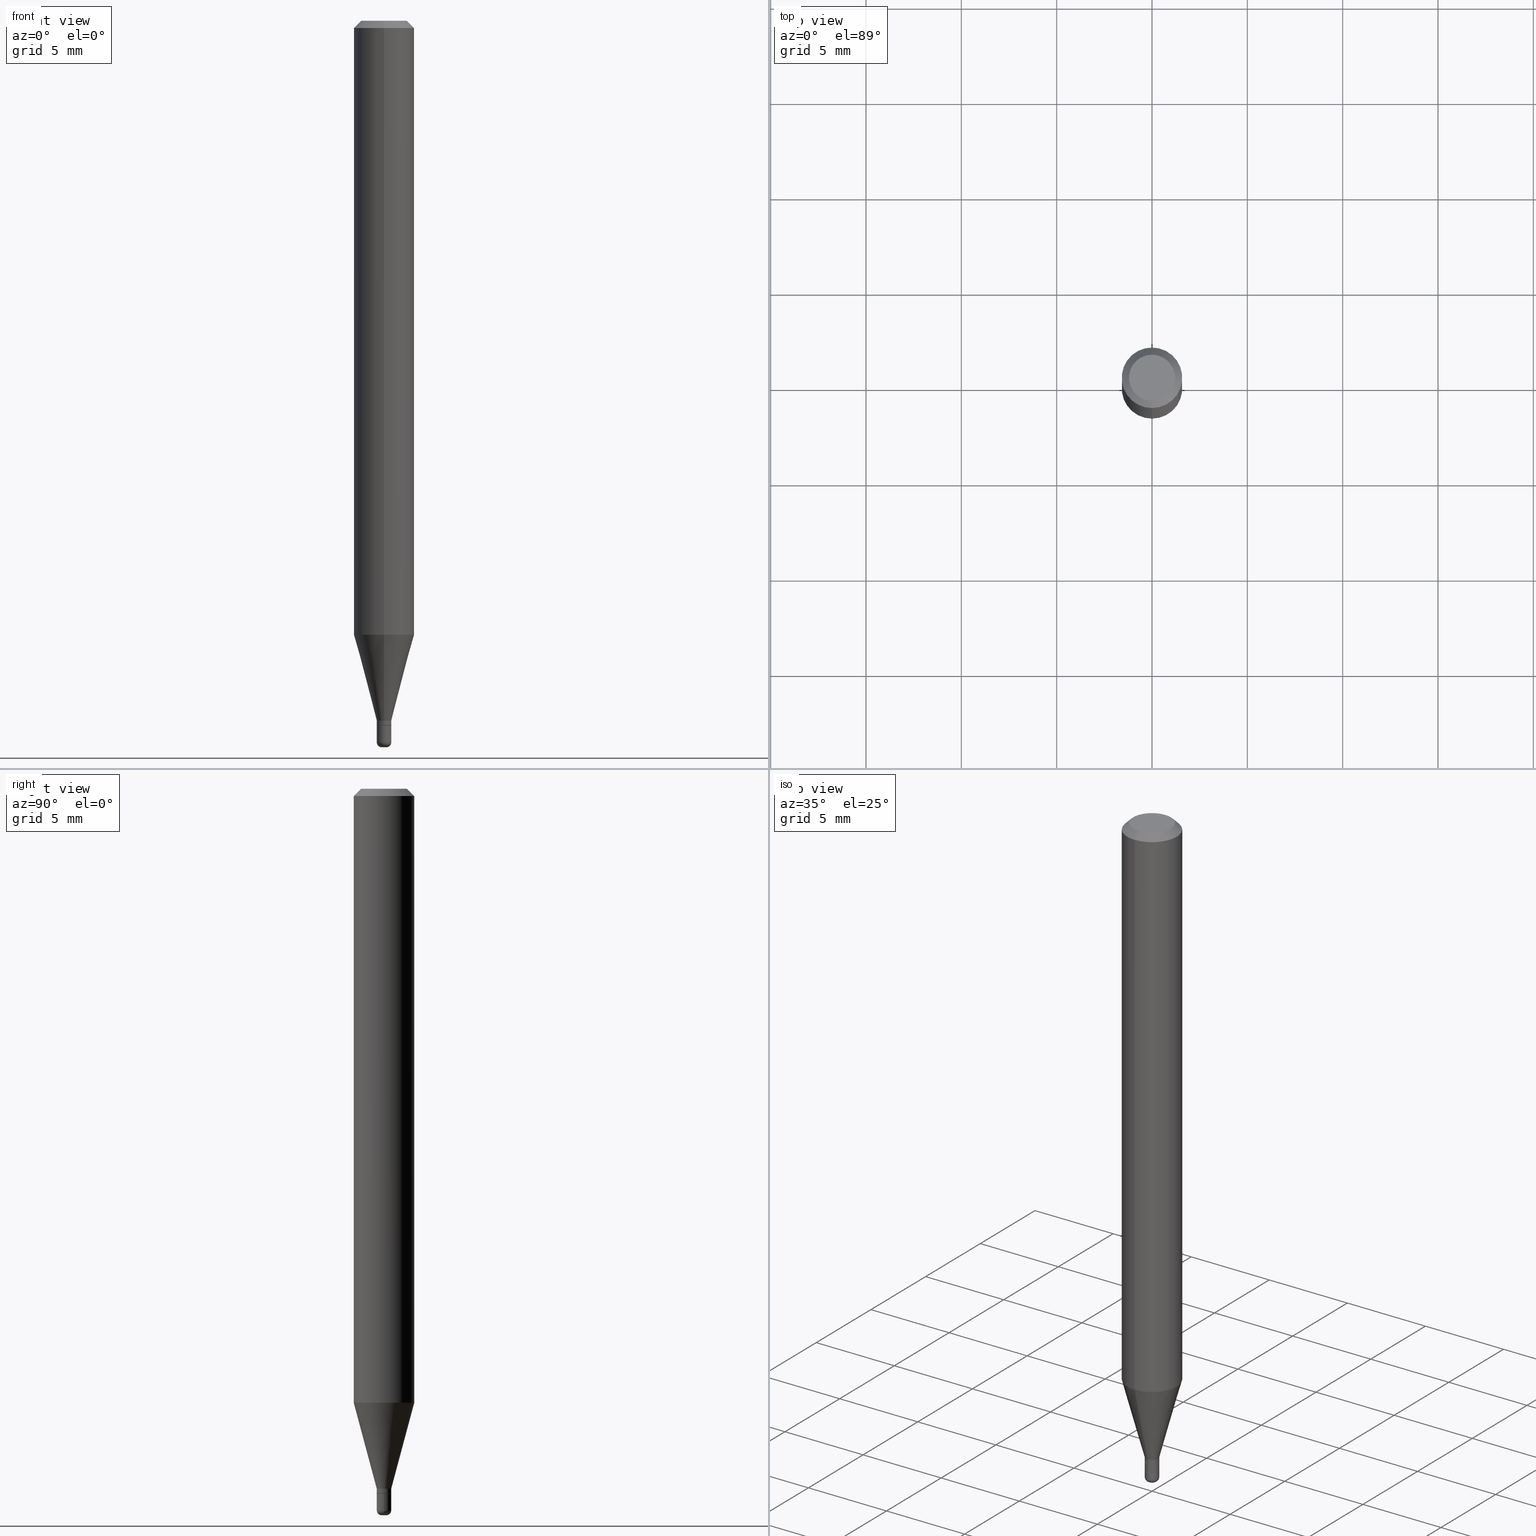
[diagram: canonical four-view strip — front | top / right | iso, engineering-drawing reading convention]
A machine part, canonical four-view strip (front | top / right | iso — engineering-drawing reading convention). The complete STEP part file that produces these views, byte-faithful:
ISO-10303-21;
HEADER;
FILE_DESCRIPTION (( 'STEP AP203' ),
    '1' );
FILE_NAME ('08992.STEP',
    '2024-02-29T21:06:07',
    ( '' ),
    ( '' ),
    'SwSTEP 2.0',
    'SolidWorks 2023',
    '' );
FILE_SCHEMA (( 'CONFIG_CONTROL_DESIGN' ));
ENDSEC;

DATA;
#1 = ORIENTED_EDGE ( 'NONE', *, *, #113, .T. ) ;
#2 = EDGE_LOOP ( 'NONE', ( #11, #154 ) ) ;
#3 = DATE_AND_TIME ( #166, #94 ) ;
#4 = VERTEX_POINT ( 'NONE', #46 ) ;
#5 = AXIS2_PLACEMENT_3D ( 'NONE', #391, #230, #393 ) ;
#6 = APPROVAL_PERSON_ORGANIZATION ( #403, #387, #202 ) ;
#7 = DIRECTION ( 'NONE',  ( -2.445486429573082884E-29, 3.491456101148545241E-15, 1.000000000000000000 ) ) ;
#8 = EDGE_CURVE ( 'NONE', #345, #23, #160, .T. ) ;
#9 = VERTEX_POINT ( 'NONE', #330 ) ;
#10 = PERSON_AND_ORGANIZATION ( #296, #280 ) ;
#11 = ORIENTED_EDGE ( 'NONE', *, *, #338, .F. ) ;
#12 = CARTESIAN_POINT ( 'NONE',  ( 3.582686580359767159E-29, -5.359686688179454114E-15, -1.500000000000000444 ) ) ;
#13 = CONICAL_SURFACE ( 'NONE', #445, 0.01500000000000004455, 0.2617993877991494078 ) ;
#14 = VECTOR ( 'NONE', #74, 39.37007874015748143 ) ;
#15 = ORIENTED_EDGE ( 'NONE', *, *, #8, .F. ) ;
#16 = ADVANCED_FACE ( 'NONE', ( #484 ), #20, .T. ) ;
#17 = DIRECTION ( 'NONE',  ( -2.445486429573083164E-29, 3.491456101148545241E-15, 1.000000000000000000 ) ) ;
#18 = CYLINDRICAL_SURFACE ( 'NONE', #287, 0.01500000000000004281 ) ;
#19 = DIRECTION ( 'NONE',  ( 6.982962677686265922E-15, 1.000000000000000000, -3.491456101148545241E-15 ) ) ;
#20 = CYLINDRICAL_SURFACE ( 'NONE', #120, 0.06250000000000000000 ) ;
#21 = VECTOR ( 'NONE', #68, 39.37007874015748143 ) ;
#22 = PLANE ( 'NONE',  #110 ) ;
#23 = VERTEX_POINT ( 'NONE', #129 ) ;
#24 = CARTESIAN_POINT ( 'NONE',  ( 3.533727890733106107E-29, -5.045154066159648808E-15, -1.445000000000000284 ) ) ;
#25 = LINE ( 'NONE', #108, #168 ) ;
#26 = ORIENTED_EDGE ( 'NONE', *, *, #162, .F. ) ;
#27 = DIRECTION ( 'NONE',  ( -6.982962677686265922E-15, -1.000000000000000000, 3.483106191921935554E-15 ) ) ;
#28 = VECTOR ( 'NONE', #380, 39.37007874015748854 ) ;
#29 = CC_DESIGN_APPROVAL ( #124, ( #245 ) ) ;
#30 = EDGE_CURVE ( 'NONE', #112, #424, #242, .T. ) ;
#31 = CARTESIAN_POINT ( 'NONE',  ( -1.047444401652589802E-16, -0.01500000000000509086, -1.445000000000000284 ) ) ;
#32 = CARTESIAN_POINT ( 'NONE',  ( 3.556960011814050937E-29, -5.078322899120560827E-15, -1.454500000000000570 ) ) ;
#33 = CARTESIAN_POINT ( 'NONE',  ( 0.000000000000000000, 0.000000000000000000, 0.000000000000000000 ) ) ;
#34 = DIRECTION ( 'NONE',  ( -6.982962677686265922E-15, -1.000000000000000000, 3.491456101148544846E-15 ) ) ;
#35 = CARTESIAN_POINT ( 'NONE',  ( 3.668203209277706016E-29, -5.237222008264719754E-15, -1.500000000000000444 ) ) ;
#36 = DIRECTION ( 'NONE',  ( -2.445486429573083164E-29, 3.491456101148545241E-15, 1.000000000000000000 ) ) ;
#37 = EDGE_CURVE ( 'NONE', #424, #112, #488, .T. ) ;
#38 = CIRCLE ( 'NONE', #361, 0.01500000000000004455 ) ;
#39 = CARTESIAN_POINT ( 'NONE',  ( 0.005000000000000000104, -5.237222008264719754E-15, -1.490000000000000213 ) ) ;
#40 = AXIS2_PLACEMENT_3D ( 'NONE', #125, #55, #511 ) ;
#41 = ORIENTED_EDGE ( 'NONE', *, *, #515, .T. ) ;
#42 = DATE_AND_TIME ( #440, #203 ) ;
#43 = VERTEX_POINT ( 'NONE', #89 ) ;
#44 = COORDINATED_UNIVERSAL_TIME_OFFSET ( 5, 0, .BEHIND. ) ;
#45 = ORIENTED_EDGE ( 'NONE', *, *, #162, .T. ) ;
#46 = CARTESIAN_POINT ( 'NONE',  ( -0.01499999999999999944, -5.034624861082517202E-15, -1.455000000000000293 ) ) ;
#47 = APPROVAL_STATUS ( 'not_yet_approved' ) ;
#48 = ORIENTED_EDGE ( 'NONE', *, *, #265, .T. ) ;
#49 = SHAPE_DEFINITION_REPRESENTATION ( #221, #117 ) ;
#50 = COORDINATED_UNIVERSAL_TIME_OFFSET ( 5, 0, .BEHIND. ) ;
#51 = ORIENTED_EDGE ( 'NONE', *, *, #338, .T. ) ;
#52 = APPROVAL_DATE_TIME ( #42, #387 ) ;
#53 = AXIS2_PLACEMENT_3D ( 'NONE', #307, #459, #171 ) ;
#54 = EDGE_LOOP ( 'NONE', ( #271, #45, #169, #274 ) ) ;
#55 = DIRECTION ( 'NONE',  ( -2.445486429573082884E-29, 3.491456101148545241E-15, 1.000000000000000000 ) ) ;
#56 = CC_DESIGN_PERSON_AND_ORGANIZATION_ASSIGNMENT ( #248, #416, ( #245 ) ) ;
#57 = ADVANCED_FACE ( 'NONE', ( #423 ), #267, .T. ) ;
#58 = CARTESIAN_POINT ( 'NONE',  ( 3.643748521215853910E-29, -5.202307194876288105E-15, -1.490000000000000213 ) ) ;
#59 = FACE_OUTER_BOUND ( 'NONE', #474, .T. ) ;
#60 = VECTOR ( 'NONE', #188, 39.37007874015748143 ) ;
#61 = ORIENTED_EDGE ( 'NONE', *, *, #113, .F. ) ;
#62 = LINE ( 'NONE', #224, #191 ) ;
#63 = ORIENTED_EDGE ( 'NONE', *, *, #8, .T. ) ;
#64 = FACE_OUTER_BOUND ( 'NONE', #2, .T. ) ;
#65 = ADVANCED_FACE ( 'NONE', ( #456 ), #373, .T. ) ;
#66 = CARTESIAN_POINT ( 'NONE',  ( 3.643748521215853910E-29, -5.202307194876288105E-15, -1.490000000000000213 ) ) ;
#67 = ORIENTED_EDGE ( 'NONE', *, *, #119, .T. ) ;
#68 = DIRECTION ( 'NONE',  ( -2.445468806185136877E-29, 3.491481338843145188E-15, 1.000000000000000000 ) ) ;
#69 = CONICAL_SURFACE ( 'NONE', #121, 0.01450000000000004410, 0.7853981633978217580 ) ;
#70 = CARTESIAN_POINT ( 'NONE',  ( 3.558182755028836386E-29, -5.080068627171133732E-15, -1.455000000000000293 ) ) ;
#71 = CARTESIAN_POINT ( 'NONE',  ( 0.000000000000000000, 0.000000000000000000, 0.000000000000000000 ) ) ;
#72 = CARTESIAN_POINT ( 'NONE',  ( 1.065814103640506706E-16, 0.01499999999999499997, -1.445000000000000284 ) ) ;
#73 = DIRECTION ( 'NONE',  ( -1.000000000000000000, 6.982962677686265922E-15, -4.876176775795935793E-29 ) ) ;
#74 = DIRECTION ( 'NONE',  ( -2.445486429573082884E-29, 3.491456101148545241E-15, 1.000000000000000000 ) ) ;
#75 = CARTESIAN_POINT ( 'NONE',  ( -1.012529588264155786E-16, -0.01450000000000512337, -1.455000000000000293 ) ) ;
#76 = APPROVAL_PERSON_ORGANIZATION ( #246, #504, #84 ) ;
#77 = AXIS2_PLACEMENT_3D ( 'NONE', #400, #161, #331 ) ;
#78 = EDGE_LOOP ( 'NONE', ( #425, #326, #297, #212 ) ) ;
#79 = ADVANCED_FACE ( 'NONE', ( #59 ), #216, .T. ) ;
#80 = EDGE_LOOP ( 'NONE', ( #223, #67, #334, #197 ) ) ;
#81 = MANIFOLD_SOLID_BREP ( 'Body-Move/Copy2[1]', #383 ) ;
#82 = ORIENTED_EDGE ( 'NONE', *, *, #298, .T. ) ;
#83 = ADVANCED_FACE ( 'NONE', ( #88 ), #135, .T. ) ;
#84 = APPROVAL_ROLE ( '' ) ;
#85 = AXIS2_PLACEMENT_3D ( 'NONE', #322, #435, #27 ) ;
#86 = CC_DESIGN_APPROVAL ( #504, ( #251 ) ) ;
#87 = PERSON_AND_ORGANIZATION_ROLE ( 'creator' ) ;
#88 = FACE_OUTER_BOUND ( 'NONE', #477, .T. ) ;
#89 = CARTESIAN_POINT ( 'NONE',  ( -0.005000000000000001839, -5.148710327994493848E-15, -1.500000000000000444 ) ) ;
#90 = ADVANCED_FACE ( 'NONE', ( #453 ), #22, .F. ) ;
#91 = DIRECTION ( 'NONE',  ( -6.982962677686265922E-15, -1.000000000000000000, 3.491456101148544846E-15 ) ) ;
#92 = CARTESIAN_POINT ( 'NONE',  ( 3.533727890733106107E-29, -5.045154066159648808E-15, -1.445000000000000284 ) ) ;
#93 = AXIS2_PLACEMENT_3D ( 'NONE', #193, #148, #138 ) ;
#94 = LOCAL_TIME ( 16, 6, 7.000000000000000000, #447 ) ;
#95 = EDGE_CURVE ( 'NONE', #410, #118, #38, .T. ) ;
#96 = VERTEX_POINT ( 'NONE', #499 ) ;
#97 = DIRECTION ( 'NONE',  ( -6.982962677686266711E-15, -1.000000000000000000, 0.000000000000000000 ) ) ;
#98 = DIRECTION ( 'NONE',  ( -2.445468806185136597E-29, 3.491481338843145583E-15, 1.000000000000000000 ) ) ;
#99 = ORIENTED_EDGE ( 'NONE', *, *, #360, .F. ) ;
#100 = DIRECTION ( 'NONE',  ( -2.445486429573083164E-29, 3.491456101148545241E-15, 1.000000000000000000 ) ) ;
#101 = DIRECTION ( 'NONE',  ( -2.445468806185136597E-29, 3.491481338843145583E-15, 1.000000000000000000 ) ) ;
#102 = CARTESIAN_POINT ( 'NONE',  ( 1.047444401653295709E-16, 0.01499999999999492017, -1.455000000000000293 ) ) ;
#103 = CIRCLE ( 'NONE', #404, 0.01500000000000004281 ) ;
#104 = DIRECTION ( 'NONE',  ( 5.024295867789938301E-15, 0.7071067811868140263, 0.7071067811862810082 ) ) ;
#105 = DIRECTION ( 'NONE',  ( 1.000000000000000000, -6.982962677686292743E-15, 4.883557194083121309E-29 ) ) ;
#106 = LINE ( 'NONE', #434, #14 ) ;
#107 = DIRECTION ( 'NONE',  ( -6.982962677686265922E-15, -1.000000000000000000, 0.000000000000000000 ) ) ;
#108 = CARTESIAN_POINT ( 'NONE',  ( 1.030286966852504007E-16, 0.01449999999999496310, -1.455000000000000293 ) ) ;
#109 = VERTEX_POINT ( 'NONE', #498 ) ;
#110 = AXIS2_PLACEMENT_3D ( 'NONE', #371, #305, #19 ) ;
#111 = LOCAL_TIME ( 16, 6, 7.000000000000000000, #481 ) ;
#112 = VERTEX_POINT ( 'NONE', #306 ) ;
#113 = EDGE_CURVE ( 'NONE', #345, #328, #374, .T. ) ;
#114 = ORIENTED_EDGE ( 'NONE', *, *, #276, .T. ) ;
#115 = ORIENTED_EDGE ( 'NONE', *, *, #127, .F. ) ;
#116 =( LENGTH_UNIT ( ) NAMED_UNIT ( * ) SI_UNIT ( $, .METRE. ) );
#117 = ADVANCED_BREP_SHAPE_REPRESENTATION ( '08992', ( #81, #263, #77 ), #496 ) ;
#118 = VERTEX_POINT ( 'NONE', #262 ) ;
#119 = EDGE_CURVE ( 'NONE', #194, #247, #369, .T. ) ;
#120 = AXIS2_PLACEMENT_3D ( 'NONE', #304, #494, #91 ) ;
#121 = AXIS2_PLACEMENT_3D ( 'NONE', #70, #237, #471 ) ;
#122 = VERTEX_POINT ( 'NONE', #172 ) ;
#123 = DIRECTION ( 'NONE',  ( -2.445486429573082884E-29, 3.491456101148545241E-15, 1.000000000000000000 ) ) ;
#124 = APPROVAL ( #301, 'UNSPECIFIED' ) ;
#125 = CARTESIAN_POINT ( 'NONE',  ( 3.558182755028836386E-29, -5.080068627171133732E-15, -1.455000000000000293 ) ) ;
#126 = CONICAL_SURFACE ( 'NONE', #93, 0.01500000000000004455, 0.2617993877991494078 ) ;
#127 = EDGE_CURVE ( 'NONE', #247, #9, #62, .T. ) ;
#128 = CARTESIAN_POINT ( 'NONE',  ( -6.680667879903571432E-45, 9.538085489645678336E-31, 2.731836005759327790E-16 ) ) ;
#129 = CARTESIAN_POINT ( 'NONE',  ( -4.364351673553912750E-16, -0.06250000000000005551, -0.01499999999999948597 ) ) ;
#130 = CALENDAR_DATE ( 2024, 29, 2 ) ;
#131 = APPLICATION_CONTEXT ( 'configuration controlled 3d designs of mechanical parts and assemblies' ) ;
#132 = CARTESIAN_POINT ( 'NONE',  ( 0.000000000000000000, 0.000000000000000000, 0.000000000000000000 ) ) ;
#133 = FACE_OUTER_BOUND ( 'NONE', #54, .T. ) ;
#134 = ADVANCED_FACE ( 'NONE', ( #379 ), #13, .T. ) ;
#135 = CONICAL_SURFACE ( 'NONE', #437, 0.06250000000000000000, 0.7853981633974488341 ) ;
#136 = ORIENTED_EDGE ( 'NONE', *, *, #515, .F. ) ;
#137 = DIRECTION ( 'NONE',  ( -6.982962677686265922E-15, -1.000000000000000000, 0.000000000000000000 ) ) ;
#138 = DIRECTION ( 'NONE',  ( -6.982962677686266711E-15, -1.000000000000000000, 0.000000000000000000 ) ) ;
#139 = ORIENTED_EDGE ( 'NONE', *, *, #329, .F. ) ;
#140 = LINE ( 'NONE', #275, #450 ) ;
#141 = LINE ( 'NONE', #72, #28 ) ;
#142 = CC_DESIGN_DATE_AND_TIME_ASSIGNMENT ( #3, #288, ( #251 ) ) ;
#143 = DIRECTION ( 'NONE',  ( -2.445486429573083164E-29, 3.491456101148545241E-15, 1.000000000000000000 ) ) ;
#144 = EDGE_CURVE ( 'NONE', #4, #325, #321, .T. ) ;
#145 = DIRECTION ( 'NONE',  ( -2.445468806185136597E-29, 3.491481338843145583E-15, 1.000000000000000000 ) ) ;
#146 = LINE ( 'NONE', #386, #375 ) ;
#147 = VECTOR ( 'NONE', #510, 39.37007874015748143 ) ;
#148 = DIRECTION ( 'NONE',  ( -2.445486429573083164E-29, 3.491456101148545241E-15, 1.000000000000000000 ) ) ;
#149 = CARTESIAN_POINT ( 'NONE',  ( -0.01500000000000004281, 1.065814103640153321E-16, -7.378402635382379552E-31 ) ) ;
#150 = ADVANCED_FACE ( 'NONE', ( #64 ), #493, .F. ) ;
#151 = CARTESIAN_POINT ( 'NONE',  ( 4.440892098500937762E-16, 0.06249999999999993755, -0.01499999999999992138 ) ) ;
#152 = ORIENTED_EDGE ( 'NONE', *, *, #30, .F. ) ;
#153 = APPLICATION_PROTOCOL_DEFINITION ( 'international standard', 'config_control_design', 1994, #428 ) ;
#154 = ORIENTED_EDGE ( 'NONE', *, *, #119, .F. ) ;
#155 = ADVANCED_FACE ( 'NONE', ( #505 ), #392, .F. ) ;
#156 = EDGE_LOOP ( 'NONE', ( #180, #363, #61, #460 ) ) ;
#157 = CIRCLE ( 'NONE', #201, 0.01500000000000004281 ) ;
#158 = DIRECTION ( 'NONE',  ( 1.000000000000000000, -6.982962677686265922E-15, 4.876176775795935793E-29 ) ) ;
#159 = ORIENTED_EDGE ( 'NONE', *, *, #389, .F. ) ;
#160 = LINE ( 'NONE', #200, #175 ) ;
#161 = DIRECTION ( 'NONE',  ( 0.000000000000000000, 0.000000000000000000, 1.000000000000000000 ) ) ;
#162 = EDGE_CURVE ( 'NONE', #96, #4, #238, .T. ) ;
#163 = ORIENTED_EDGE ( 'NONE', *, *, #427, .T. ) ;
#164 = CARTESIAN_POINT ( 'NONE',  ( -1.047444401652943063E-16, -0.01500000000000004455, 5.237184151722833491E-17 ) ) ;
#165 = EDGE_LOOP ( 'NONE', ( #1, #517, #490, #15 ) ) ;
#166 = CALENDAR_DATE ( 2024, 29, 2 ) ;
#167 = AXIS2_PLACEMENT_3D ( 'NONE', #174, #17, #269 ) ;
#168 = VECTOR ( 'NONE', #104, 39.37007874015748143 ) ;
#169 = ORIENTED_EDGE ( 'NONE', *, *, #492, .F. ) ;
#170 = CC_DESIGN_PERSON_AND_ORGANIZATION_ASSIGNMENT ( #10, #87, ( #458 ) ) ;
#171 = DIRECTION ( 'NONE',  ( -6.982962677686265922E-15, -1.000000000000000000, 0.000000000000000000 ) ) ;
#172 = CARTESIAN_POINT ( 'NONE',  ( 0.005000000000000001839, -5.272136821653151404E-15, -1.500000000000000444 ) ) ;
#173 = EDGE_CURVE ( 'NONE', #9, #109, #157, .T. ) ;
#174 = CARTESIAN_POINT ( 'NONE',  ( 3.100210609524725780E-29, -4.426215216970220777E-15, -1.267727586640478687 ) ) ;
#175 = VECTOR ( 'NONE', #7, 39.37007874015748143 ) ;
#176 = AXIS2_PLACEMENT_3D ( 'NONE', #66, #98, #239 ) ;
#177 = AXIS2_PLACEMENT_3D ( 'NONE', #324, #473, #285 ) ;
#178 = DIRECTION ( 'NONE',  ( -6.982962677686265133E-15, -1.000000000000000000, 3.491456101148544846E-15 ) ) ;
#179 = DIRECTION ( 'NONE',  ( -2.445486429573083164E-29, 3.491456101148545241E-15, 1.000000000000000000 ) ) ;
#180 = ORIENTED_EDGE ( 'NONE', *, *, #95, .T. ) ;
#181 = DIRECTION ( 'NONE',  ( -2.445486429573083164E-29, 3.491456101148545241E-15, 1.000000000000000000 ) ) ;
#182 = DIRECTION ( 'NONE',  ( 1.000000000000000000, -6.982962677686268288E-15, 0.000000000000000000 ) ) ;
#183 = AXIS2_PLACEMENT_3D ( 'NONE', #336, #272, #413 ) ;
#184 = DIRECTION ( 'NONE',  ( -2.445486429573083164E-29, 3.491456101148545241E-15, 1.000000000000000000 ) ) ;
#185 = DIRECTION ( 'NONE',  ( -2.445468806185136597E-29, 3.491481338843145583E-15, 1.000000000000000000 ) ) ;
#186 = DIRECTION ( 'NONE',  ( -6.982962677686266711E-15, -1.000000000000000000, 0.000000000000000000 ) ) ;
#187 = CARTESIAN_POINT ( 'NONE',  ( -3.773273898774340269E-16, -0.04750000000000000749, 4.390277653804887312E-16 ) ) ;
#188 = DIRECTION ( 'NONE',  ( 4.937700262164550409E-15, 0.7071067811865454633, -0.7071067811865495711 ) ) ;
#189 = DIRECTION ( 'NONE',  ( -2.445486429573083164E-29, 3.491456101148545241E-15, 1.000000000000000000 ) ) ;
#190 = CLOSED_SHELL ( 'NONE', ( #65, #218, #83, #16, #134, #347, #236, #260, #90, #150, #455, #79 ) ) ;
#191 = VECTOR ( 'NONE', #312, 39.37007874015748143 ) ;
#192 = APPROVAL_PERSON_ORGANIZATION ( #210, #124, #414 ) ;
#193 = CARTESIAN_POINT ( 'NONE',  ( 3.533727890733106107E-29, -5.045154066159648808E-15, -1.445000000000000284 ) ) ;
#194 = VERTEX_POINT ( 'NONE', #472 ) ;
#195 = EDGE_CURVE ( 'NONE', #109, #9, #103, .T. ) ;
#196 = PERSON_AND_ORGANIZATION ( #296, #280 ) ;
#197 = ORIENTED_EDGE ( 'NONE', *, *, #195, .F. ) ;
#198 = LINE ( 'NONE', #164, #405 ) ;
#199 = EDGE_LOOP ( 'NONE', ( #227, #152, #402, #163 ) ) ;
#200 = CARTESIAN_POINT ( 'NONE',  ( -4.364351673553916201E-16, -0.06250000000000000000, 2.182160063217840529E-16 ) ) ;
#201 = AXIS2_PLACEMENT_3D ( 'NONE', #32, #36, #186 ) ;
#202 = APPROVAL_ROLE ( '' ) ;
#203 = LOCAL_TIME ( 16, 6, 7.000000000000000000, #44 ) ;
#204 = ADVANCED_FACE ( 'NONE', ( #514 ), #302, .T. ) ;
#205 = ORIENTED_EDGE ( 'NONE', *, *, #173, .F. ) ;
#206 = CALENDAR_DATE ( 2024, 29, 2 ) ;
#207 = ORIENTED_EDGE ( 'NONE', *, *, #467, .T. ) ;
#208 =( CONVERSION_BASED_UNIT ( 'INCH', #256 ) LENGTH_UNIT ( ) NAMED_UNIT ( #316 ) );
#209 = ORIENTED_EDGE ( 'NONE', *, *, #276, .F. ) ;
#210 = PERSON_AND_ORGANIZATION ( #296, #280 ) ;
#211 = CIRCLE ( 'NONE', #495, 0.01500000000000004455 ) ;
#212 = ORIENTED_EDGE ( 'NONE', *, *, #475, .F. ) ;
#213 = EDGE_CURVE ( 'NONE', #328, #345, #489, .T. ) ;
#214 = UNCERTAINTY_MEASURE_WITH_UNIT (LENGTH_MEASURE( 1.000000000000000082E-05 ), #208, 'distance_accuracy_value', 'NONE');
#215 = DIRECTION ( 'NONE',  ( -6.982962677686266711E-15, -1.000000000000000000, 3.491456101148545241E-15 ) ) ;
#216 = CYLINDRICAL_SURFACE ( 'NONE', #368, 0.01500000000000004455 ) ;
#217 = AXIS2_PLACEMENT_3D ( 'NONE', #35, #101, #506 ) ;
#218 = ADVANCED_FACE ( 'NONE', ( #462 ), #278, .T. ) ;
#219 = DESIGN_CONTEXT ( 'detailed design', #428, 'design' ) ;
#220 = DIRECTION ( 'NONE',  ( 2.445486429573083164E-29, -3.491456101148545241E-15, -1.000000000000000000 ) ) ;
#221 = PRODUCT_DEFINITION_SHAPE ( 'NONE', 'NONE',  #251 ) ;
#222 = CARTESIAN_POINT ( 'NONE',  ( 0.000000000000000000, 0.000000000000000000, 0.000000000000000000 ) ) ;
#223 = ORIENTED_EDGE ( 'NONE', *, *, #372, .F. ) ;
#224 = CARTESIAN_POINT ( 'NONE',  ( -1.012529588264155786E-16, -0.01450000000000512337, -1.455000000000000293 ) ) ;
#225 = CARTESIAN_POINT ( 'NONE',  ( 4.364351673553919652E-16, 0.06249999999999995143, -0.01499999999999992138 ) ) ;
#226 = CARTESIAN_POINT ( 'NONE',  ( 4.440892098500932831E-16, 0.06249999999999555911, -1.267727586640479132 ) ) ;
#227 = ORIENTED_EDGE ( 'NONE', *, *, #355, .F. ) ;
#228 = CARTESIAN_POINT ( 'NONE',  ( 3.668229644359552001E-31, -5.237184151722713929E-17, -0.01499999999999970281 ) ) ;
#229 = CC_DESIGN_PERSON_AND_ORGANIZATION_ASSIGNMENT ( #476, #407, ( #454 ) ) ;
#230 = DIRECTION ( 'NONE',  ( -2.445486429573083164E-29, 3.491456101148545241E-15, 1.000000000000000000 ) ) ;
#231 = EDGE_LOOP ( 'NONE', ( #51, #394, #205, #115 ) ) ;
#232 = CIRCLE ( 'NONE', #176, 0.01500000000000008618 ) ;
#233 = ORIENTED_EDGE ( 'NONE', *, *, #30, .T. ) ;
#234 = DIRECTION ( 'NONE',  ( 1.000000000000000000, -6.982962677686292743E-15, 0.000000000000000000 ) ) ;
#235 = CIRCLE ( 'NONE', #479, 0.01499999999999999944 ) ;
#236 = ADVANCED_FACE ( 'NONE', ( #284 ), #432, .T. ) ;
#237 = DIRECTION ( 'NONE',  ( -2.445486429573083164E-29, 3.491456101148545241E-15, 1.000000000000000000 ) ) ;
#238 = LINE ( 'NONE', #149, #21 ) ;
#239 = DIRECTION ( 'NONE',  ( 1.000000000000000000, -6.982962677686292743E-15, 0.000000000000000000 ) ) ;
#240 = DIRECTION ( 'NONE',  ( -6.982962677686266711E-15, -1.000000000000000000, 0.000000000000000000 ) ) ;
#241 = CYLINDRICAL_SURFACE ( 'NONE', #244, 0.01500000000000004281 ) ;
#242 = CIRCLE ( 'NONE', #300, 0.04750000000000000749 ) ;
#243 = CARTESIAN_POINT ( 'NONE',  ( 3.556960011814050937E-29, -5.078322899120560827E-15, -1.454500000000000570 ) ) ;
#244 = AXIS2_PLACEMENT_3D ( 'NONE', #33, #145, #464 ) ;
#245 = SECURITY_CLASSIFICATION ( '', '', #358 ) ;
#246 = PERSON_AND_ORGANIZATION ( #296, #280 ) ;
#247 = VERTEX_POINT ( 'NONE', #75 ) ;
#248 = PERSON_AND_ORGANIZATION ( #296, #280 ) ;
#249 = ORIENTED_EDGE ( 'NONE', *, *, #427, .F. ) ;
#250 = ORIENTED_EDGE ( 'NONE', *, *, #483, .F. ) ;
#251 = PRODUCT_DEFINITION ( 'UNKNOWN', '', #458, #219 ) ;
#252 = PERSON_AND_ORGANIZATION ( #296, #280 ) ;
#253 = ORIENTED_EDGE ( 'NONE', *, *, #355, .T. ) ;
#254 = AXIS2_PLACEMENT_3D ( 'NONE', #58, #449, #501 ) ;
#255 = CIRCLE ( 'NONE', #261, 0.01000000000000008521 ) ;
#256 = LENGTH_MEASURE_WITH_UNIT ( LENGTH_MEASURE( 0.02539999999999999897 ), #116 );
#257 = ORIENTED_EDGE ( 'NONE', *, *, #298, .F. ) ;
#258 = APPROVAL_DATE_TIME ( #446, #124 ) ;
#259 = DATE_TIME_ROLE ( 'classification_date' ) ;
#260 = ADVANCED_FACE ( 'NONE', ( #318 ), #513, .T. ) ;
#261 = AXIS2_PLACEMENT_3D ( 'NONE', #503, #507, #431 ) ;
#262 = CARTESIAN_POINT ( 'NONE',  ( 2.753353101070722973E-16, 0.01499999999999500171, -1.445000000000000284 ) ) ;
#263 = MANIFOLD_SOLID_BREP ( 'Body-Move/Copy2[2]', #190 ) ;
#264 = CARTESIAN_POINT ( 'NONE',  ( -6.680667879903571432E-45, 9.538085489645678336E-31, 2.731836005759327790E-16 ) ) ;
#265 = EDGE_CURVE ( 'NONE', #23, #482, #335, .T. ) ;
#266 = DIRECTION ( 'NONE',  ( -2.445486429573083164E-29, 3.491456101148545241E-15, 1.000000000000000000 ) ) ;
#267 = TOROIDAL_SURFACE ( 'NONE', #254, 0.005000000000000000104, 0.01000000000000008521 ) ;
#268 = ORIENTED_EDGE ( 'NONE', *, *, #314, .T. ) ;
#269 = DIRECTION ( 'NONE',  ( -6.982962677686265922E-15, -1.000000000000000000, 4.370956789862821150E-15 ) ) ;
#270 = CC_DESIGN_PERSON_AND_ORGANIZATION_ASSIGNMENT ( #252, #367, ( #251 ) ) ;
#271 = ORIENTED_EDGE ( 'NONE', *, *, #365, .T. ) ;
#272 = DIRECTION ( 'NONE',  ( -2.445468806185136597E-29, 3.491481338843145583E-15, 1.000000000000000000 ) ) ;
#273 = DIRECTION ( 'NONE',  ( -6.982962677686266711E-15, -1.000000000000000000, 3.491481338843145583E-15 ) ) ;
#274 = ORIENTED_EDGE ( 'NONE', *, *, #283, .F. ) ;
#275 = CARTESIAN_POINT ( 'NONE',  ( 0.01500000000000004281, -1.047444401652942940E-16, 7.314265163693924534E-31 ) ) ;
#276 = EDGE_CURVE ( 'NONE', #118, #410, #211, .T. ) ;
#277 = LINE ( 'NONE', #225, #60 ) ;
#278 = CONICAL_SURFACE ( 'NONE', #340, 0.01450000000000004410, 0.7853981633978217580 ) ;
#279 = DIRECTION ( 'NONE',  ( -2.445468806185136597E-29, 3.491481338843145583E-15, 1.000000000000000000 ) ) ;
#280 = ORGANIZATION ( 'UNSPECIFIED', 'UNSPECIFIED', '' ) ;
#281 = CARTESIAN_POINT ( 'NONE',  ( 3.643748521215853910E-29, -5.202307194876288105E-15, -1.490000000000000213 ) ) ;
#282 = FACE_OUTER_BOUND ( 'NONE', #398, .T. ) ;
#283 = EDGE_CURVE ( 'NONE', #408, #325, #140, .T. ) ;
#284 = FACE_OUTER_BOUND ( 'NONE', #290, .T. ) ;
#285 = DIRECTION ( 'NONE',  ( 1.000000000000000000, -6.982962677686329819E-15, 0.000000000000000000 ) ) ;
#286 = ORIENTED_EDGE ( 'NONE', *, *, #444, .F. ) ;
#287 = AXIS2_PLACEMENT_3D ( 'NONE', #222, #497, #344 ) ;
#288 = DATE_TIME_ROLE ( 'creation_date' ) ;
#289 = ORIENTED_EDGE ( 'NONE', *, *, #475, .T. ) ;
#290 = EDGE_LOOP ( 'NONE', ( #311, #292, #63, #249 ) ) ;
#291 = APPLICATION_PROTOCOL_DEFINITION ( 'international standard', 'config_control_design', 1994, #131 ) ;
#292 = ORIENTED_EDGE ( 'NONE', *, *, #213, .T. ) ;
#293 = ORIENTED_EDGE ( 'NONE', *, *, #144, .F. ) ;
#294 = MECHANICAL_CONTEXT ( 'NONE', #131, 'mechanical' ) ;
#295 = AXIS2_PLACEMENT_3D ( 'NONE', #12, #485, #158 ) ;
#296 = PERSON ( 'UNSPECIFIED', 'UNSPECIFIED', 'UNSPECIFIED', ('UNSPECIFIED'), ('UNSPECIFIED'), ('UNSPECIFIED') ) ;
#297 = ORIENTED_EDGE ( 'NONE', *, *, #365, .F. ) ;
#298 = EDGE_CURVE ( 'NONE', #96, #408, #502, .T. ) ;
#299 = DIRECTION ( 'NONE',  ( -2.445486429573083164E-29, 3.491456101148545241E-15, 1.000000000000000000 ) ) ;
#300 = AXIS2_PLACEMENT_3D ( 'NONE', #264, #299, #178 ) ;
#301 = APPROVAL_STATUS ( 'not_yet_approved' ) ;
#302 = TOROIDAL_SURFACE ( 'NONE', #308, 0.005000000000000000104, 0.01000000000000008521 ) ;
#303 = CC_DESIGN_SECURITY_CLASSIFICATION ( #245, ( #458 ) ) ;
#304 = CARTESIAN_POINT ( 'NONE',  ( 0.000000000000000000, 0.000000000000000000, 0.000000000000000000 ) ) ;
#305 = DIRECTION ( 'NONE',  ( 2.445486429573082884E-29, -3.491456101148545241E-15, -1.000000000000000000 ) ) ;
#306 = CARTESIAN_POINT ( 'NONE',  ( 3.840629472727447874E-16, 0.04750000000000000749, 1.073394357713768884E-16 ) ) ;
#307 = CARTESIAN_POINT ( 'NONE',  ( 3.558182755028836386E-29, -5.080068627171133732E-15, -1.455000000000000293 ) ) ;
#308 = AXIS2_PLACEMENT_3D ( 'NONE', #509, #279, #105 ) ;
#309 = CIRCLE ( 'NONE', #356, 0.01000000000000008521 ) ;
#310 = CC_DESIGN_PERSON_AND_ORGANIZATION_ASSIGNMENT ( #196, #518, ( #458 ) ) ;
#311 = ORIENTED_EDGE ( 'NONE', *, *, #419, .F. ) ;
#312 = DIRECTION ( 'NONE',  ( -4.937700262166391610E-15, -0.7071067811868091413, 0.7071067811862858932 ) ) ;
#313 = LINE ( 'NONE', #351, #411 ) ;
#314 = EDGE_CURVE ( 'NONE', #410, #345, #146, .T. ) ;
#315 = DIRECTION ( 'NONE',  ( -6.982962677686265922E-15, -1.000000000000000000, 4.370956789862821150E-15 ) ) ;
#316 = DIMENSIONAL_EXPONENTS ( 1.000000000000000000, 0.000000000000000000, 0.000000000000000000, 0.000000000000000000, 0.000000000000000000, 0.000000000000000000, 0.000000000000000000 ) ;
#317 = CARTESIAN_POINT ( 'NONE',  ( -4.364351673553607559E-16, -0.06250000000000444089, -1.267727586640478465 ) ) ;
#318 = FACE_OUTER_BOUND ( 'NONE', #199, .T. ) ;
#319 = DIRECTION ( 'NONE',  ( -2.445486429573082884E-29, 3.491456101148545241E-15, 1.000000000000000000 ) ) ;
#320 = AXIS2_PLACEMENT_3D ( 'NONE', #415, #339, #215 ) ;
#321 = CIRCLE ( 'NONE', #183, 0.01499999999999999944 ) ;
#322 = CARTESIAN_POINT ( 'NONE',  ( 3.668229644359552001E-31, -5.237184151722713929E-17, -0.01499999999999970281 ) ) ;
#323 = DIRECTION ( 'NONE',  ( 2.438088387897960049E-29, -3.491481338843145188E-15, -1.000000000000000000 ) ) ;
#324 = CARTESIAN_POINT ( 'NONE',  ( 3.668203209277706016E-29, -5.237222008264719754E-15, -1.500000000000000444 ) ) ;
#325 = VERTEX_POINT ( 'NONE', #433 ) ;
#326 = ORIENTED_EDGE ( 'NONE', *, *, #329, .T. ) ;
#327 = ORIENTED_EDGE ( 'NONE', *, *, #37, .F. ) ;
#328 = VERTEX_POINT ( 'NONE', #226 ) ;
#329 = EDGE_CURVE ( 'NONE', #43, #96, #255, .T. ) ;
#330 = CARTESIAN_POINT ( 'NONE',  ( -1.047444401652590788E-16, -0.01500000000000517066, -1.454500000000000570 ) ) ;
#331 = DIRECTION ( 'NONE',  ( 1.000000000000000000, 0.000000000000000000, 0.000000000000000000 ) ) ;
#332 = EDGE_LOOP ( 'NONE', ( #139, #406, #289, #257 ) ) ;
#333 =( NAMED_UNIT ( * ) PLANE_ANGLE_UNIT ( ) SI_UNIT ( $, .RADIAN. ) );
#334 = ORIENTED_EDGE ( 'NONE', *, *, #127, .T. ) ;
#335 = CIRCLE ( 'NONE', #85, 0.06250000000000000000 ) ;
#336 = CARTESIAN_POINT ( 'NONE',  ( 3.558157112999374623E-29, -5.080105348016777334E-15, -1.455000000000000293 ) ) ;
#337 = ADVANCED_FACE ( 'NONE', ( #133 ), #18, .T. ) ;
#338 = EDGE_CURVE ( 'NONE', #247, #194, #395, .T. ) ;
#339 = DIRECTION ( 'NONE',  ( -2.445486429573083164E-29, 3.491456101148545241E-15, 1.000000000000000000 ) ) ;
#340 = AXIS2_PLACEMENT_3D ( 'NONE', #357, #143, #107 ) ;
#341 = DIRECTION ( 'NONE',  ( -6.982962677686266711E-15, -1.000000000000000000, 3.491456101148545241E-15 ) ) ;
#342 = COORDINATED_UNIVERSAL_TIME_OFFSET ( 5, 0, .BEHIND. ) ;
#343 = DIRECTION ( 'NONE',  ( -2.445486429573083164E-29, 3.491456101148545241E-15, 1.000000000000000000 ) ) ;
#344 = DIRECTION ( 'NONE',  ( 1.000000000000000000, -6.982962677686266711E-15, 4.876176775795935793E-29 ) ) ;
#345 = VERTEX_POINT ( 'NONE', #317 ) ;
#346 = DIRECTION ( 'NONE',  ( -6.982962677686266711E-15, -1.000000000000000000, 0.000000000000000000 ) ) ;
#347 = ADVANCED_FACE ( 'NONE', ( #388 ), #126, .T. ) ;
#348 = FACE_OUTER_BOUND ( 'NONE', #381, .T. ) ;
#349 = AXIS2_PLACEMENT_3D ( 'NONE', #71, #100, #34 ) ;
#350 = DIRECTION ( 'NONE',  ( -6.982962677686266711E-15, -1.000000000000000000, 0.000000000000000000 ) ) ;
#351 = CARTESIAN_POINT ( 'NONE',  ( 4.440892098500625669E-16, 0.06250000000000000000, -2.182160063217840529E-16 ) ) ;
#352 = DIRECTION ( 'NONE',  ( -2.445486429573083164E-29, 3.491456101148545241E-15, 1.000000000000000000 ) ) ;
#353 = CARTESIAN_POINT ( 'NONE',  ( -4.287811248607203282E-16, -0.06250000000000005551, -0.01499999999999948597 ) ) ;
#354 = DIRECTION ( 'NONE',  ( -2.445468806185136877E-29, 3.491481338843145188E-15, 1.000000000000000000 ) ) ;
#355 = EDGE_CURVE ( 'NONE', #424, #23, #384, .T. ) ;
#356 = AXIS2_PLACEMENT_3D ( 'NONE', #39, #273, #516 ) ;
#357 = CARTESIAN_POINT ( 'NONE',  ( 3.558182755028836386E-29, -5.080068627171133732E-15, -1.455000000000000293 ) ) ;
#358 = SECURITY_CLASSIFICATION_LEVEL ( 'unclassified' ) ;
#359 = EDGE_LOOP ( 'NONE', ( #233, #465 ) ) ;
#360 = EDGE_CURVE ( 'NONE', #118, #328, #141, .T. ) ;
#361 = AXIS2_PLACEMENT_3D ( 'NONE', #92, #179, #346 ) ;
#362 = AXIS2_PLACEMENT_3D ( 'NONE', #228, #466, #382 ) ;
#363 = ORIENTED_EDGE ( 'NONE', *, *, #360, .T. ) ;
#364 = APPROVAL_DATE_TIME ( #397, #504 ) ;
#365 = EDGE_CURVE ( 'NONE', #408, #96, #232, .T. ) ;
#366 = ORIENTED_EDGE ( 'NONE', *, *, #467, .F. ) ;
#367 = PERSON_AND_ORGANIZATION_ROLE ( 'creator' ) ;
#368 = AXIS2_PLACEMENT_3D ( 'NONE', #132, #343, #341 ) ;
#369 = CIRCLE ( 'NONE', #457, 0.01450000000000004410 ) ;
#370 = CARTESIAN_POINT ( 'NONE',  ( 3.668229644359552001E-31, -5.237184151722713929E-17, -0.01499999999999970281 ) ) ;
#371 = CARTESIAN_POINT ( 'NONE',  ( 3.316907271900976589E-16, 0.04750000000000000749, -2.925236451658952572E-17 ) ) ;
#372 = EDGE_CURVE ( 'NONE', #194, #109, #25, .T. ) ;
#373 = CYLINDRICAL_SURFACE ( 'NONE', #320, 0.01500000000000004455 ) ;
#374 = CIRCLE ( 'NONE', #167, 0.06250000000000000000 ) ;
#375 = VECTOR ( 'NONE', #470, 39.37007874015748854 ) ;
#376 = CC_DESIGN_APPROVAL ( #387, ( #458 ) ) ;
#377 = DIRECTION ( 'NONE',  ( 6.982962677686265922E-15, 1.000000000000000000, -3.483106191921935554E-15 ) ) ;
#378 = ORIENTED_EDGE ( 'NONE', *, *, #283, .T. ) ;
#379 = FACE_OUTER_BOUND ( 'NONE', #156, .T. ) ;
#380 = DIRECTION ( 'NONE',  ( 1.839019923739594004E-15, 0.2588190451025240701, 0.9659258262890673130 ) ) ;
#381 = EDGE_LOOP ( 'NONE', ( #250, #286 ) ) ;
#382 = DIRECTION ( 'NONE',  ( 6.982962677686265922E-15, 1.000000000000000000, -3.483106191921935554E-15 ) ) ;
#383 = CLOSED_SHELL ( 'NONE', ( #204, #337, #155, #399, #57, #508 ) ) ;
#384 = LINE ( 'NONE', #353, #147 ) ;
#385 = CIRCLE ( 'NONE', #5, 0.06250000000000000000 ) ;
#386 = CARTESIAN_POINT ( 'NONE',  ( -1.047444401652589802E-16, -0.01500000000000509086, -1.445000000000000284 ) ) ;
#387 = APPROVAL ( #47, 'UNSPECIFIED' ) ;
#388 = FACE_OUTER_BOUND ( 'NONE', #441, .T. ) ;
#389 = EDGE_CURVE ( 'NONE', #112, #482, #277, .T. ) ;
#390 = CARTESIAN_POINT ( 'NONE',  ( 3.100210609524725780E-29, -4.426215216970220777E-15, -1.267727586640478687 ) ) ;
#391 = CARTESIAN_POINT ( 'NONE',  ( 3.668229644359552001E-31, -5.237184151722713929E-17, -0.01499999999999970281 ) ) ;
#392 = PLANE ( 'NONE',  #430 ) ;
#393 = DIRECTION ( 'NONE',  ( -6.982962677686265922E-15, -1.000000000000000000, 3.483106191921935554E-15 ) ) ;
#394 = ORIENTED_EDGE ( 'NONE', *, *, #372, .T. ) ;
#395 = CIRCLE ( 'NONE', #53, 0.01450000000000004410 ) ;
#396 = CARTESIAN_POINT ( 'NONE',  ( 3.533727890733106107E-29, -5.045154066159648808E-15, -1.445000000000000284 ) ) ;
#397 = DATE_AND_TIME ( #206, #451 ) ;
#398 = EDGE_LOOP ( 'NONE', ( #26, #82, #378, #293 ) ) ;
#399 = ADVANCED_FACE ( 'NONE', ( #282 ), #241, .T. ) ;
#400 = CARTESIAN_POINT ( 'NONE',  ( 0.000000000000000000, 0.000000000000000000, 0.000000000000000000 ) ) ;
#401 = EDGE_LOOP ( 'NONE', ( #438, #207, #422, #136 ) ) ;
#402 = ORIENTED_EDGE ( 'NONE', *, *, #389, .T. ) ;
#403 = PERSON_AND_ORGANIZATION ( #296, #280 ) ;
#404 = AXIS2_PLACEMENT_3D ( 'NONE', #243, #352, #240 ) ;
#405 = VECTOR ( 'NONE', #123, 39.37007874015748143 ) ;
#406 = ORIENTED_EDGE ( 'NONE', *, *, #444, .T. ) ;
#407 = PERSON_AND_ORGANIZATION_ROLE ( 'design_owner' ) ;
#408 = VERTEX_POINT ( 'NONE', #512 ) ;
#409 = EDGE_LOOP ( 'NONE', ( #420, #486 ) ) ;
#410 = VERTEX_POINT ( 'NONE', #31 ) ;
#411 = VECTOR ( 'NONE', #319, 39.37007874015748143 ) ;
#412 = CC_DESIGN_DATE_AND_TIME_ASSIGNMENT ( #448, #259, ( #245 ) ) ;
#413 = DIRECTION ( 'NONE',  ( 1.000000000000000000, -6.982962677686268288E-15, 0.000000000000000000 ) ) ;
#414 = APPROVAL_ROLE ( '' ) ;
#415 = CARTESIAN_POINT ( 'NONE',  ( 0.000000000000000000, 0.000000000000000000, 0.000000000000000000 ) ) ;
#416 = PERSON_AND_ORGANIZATION_ROLE ( 'classification_officer' ) ;
#417 = CIRCLE ( 'NONE', #177, 0.005000000000000001839 ) ;
#418 = LOCAL_TIME ( 16, 6, 7.000000000000000000, #342 ) ;
#419 = EDGE_CURVE ( 'NONE', #328, #482, #313, .T. ) ;
#420 = ORIENTED_EDGE ( 'NONE', *, *, #492, .T. ) ;
#421 = CARTESIAN_POINT ( 'NONE',  ( 3.558182755028836386E-29, -5.080068627171133732E-15, -1.455000000000000293 ) ) ;
#422 = ORIENTED_EDGE ( 'NONE', *, *, #95, .F. ) ;
#423 = FACE_OUTER_BOUND ( 'NONE', #332, .T. ) ;
#424 = VERTEX_POINT ( 'NONE', #187 ) ;
#425 = ORIENTED_EDGE ( 'NONE', *, *, #483, .T. ) ;
#426 = DIRECTION ( 'NONE',  ( -2.445468806185136597E-29, 3.491481338843145583E-15, 1.000000000000000000 ) ) ;
#427 = EDGE_CURVE ( 'NONE', #482, #23, #385, .T. ) ;
#428 = APPLICATION_CONTEXT ( 'configuration controlled 3d designs of mechanical parts and assemblies' ) ;
#429 = FACE_OUTER_BOUND ( 'NONE', #80, .T. ) ;
#430 = AXIS2_PLACEMENT_3D ( 'NONE', #102, #323, #73 ) ;
#431 = DIRECTION ( 'NONE',  ( -1.000000000000000000, 7.105427357600962416E-15, 0.000000000000000000 ) ) ;
#432 = CYLINDRICAL_SURFACE ( 'NONE', #349, 0.06250000000000000000 ) ;
#433 = CARTESIAN_POINT ( 'NONE',  ( 0.01499999999999999944, -5.184849788182071492E-15, -1.455000000000000293 ) ) ;
#434 = CARTESIAN_POINT ( 'NONE',  ( 1.065814103640153321E-16, 0.01500000000000004455, -5.237184151722833491E-17 ) ) ;
#435 = DIRECTION ( 'NONE',  ( -2.445486429573083164E-29, 3.491456101148545241E-15, 1.000000000000000000 ) ) ;
#436 = CARTESIAN_POINT ( 'NONE',  ( 3.558157112999374623E-29, -5.080105348016777334E-15, -1.455000000000000293 ) ) ;
#437 = AXIS2_PLACEMENT_3D ( 'NONE', #370, #220, #377 ) ;
#438 = ORIENTED_EDGE ( 'NONE', *, *, #173, .T. ) ;
#439 = AXIS2_PLACEMENT_3D ( 'NONE', #281, #426, #234 ) ;
#440 = CALENDAR_DATE ( 2024, 29, 2 ) ;
#441 = EDGE_LOOP ( 'NONE', ( #99, #114, #268, #500 ) ) ;
#442 = APPROVAL_STATUS ( 'not_yet_approved' ) ;
#443 = CALENDAR_DATE ( 2024, 29, 2 ) ;
#444 = EDGE_CURVE ( 'NONE', #43, #122, #469, .T. ) ;
#445 = AXIS2_PLACEMENT_3D ( 'NONE', #24, #461, #97 ) ;
#446 = DATE_AND_TIME ( #443, #111 ) ;
#447 = COORDINATED_UNIVERSAL_TIME_OFFSET ( 5, 0, .BEHIND. ) ;
#448 = DATE_AND_TIME ( #130, #418 ) ;
#449 = DIRECTION ( 'NONE',  ( -2.445468806185136597E-29, 3.491481338843145583E-15, 1.000000000000000000 ) ) ;
#450 = VECTOR ( 'NONE', #354, 39.37007874015748143 ) ;
#451 = LOCAL_TIME ( 16, 6, 7.000000000000000000, #50 ) ;
#452 = DIRECTION ( 'NONE',  ( -6.982962677686265133E-15, -1.000000000000000000, 3.491456101148544846E-15 ) ) ;
#453 = FACE_OUTER_BOUND ( 'NONE', #359, .T. ) ;
#454 = PRODUCT ( '08992', '08992', '', ( #294 ) ) ;
#455 = ADVANCED_FACE ( 'NONE', ( #429 ), #69, .T. ) ;
#456 = FACE_OUTER_BOUND ( 'NONE', #401, .T. ) ;
#457 = AXIS2_PLACEMENT_3D ( 'NONE', #421, #181, #137 ) ;
#458 = PRODUCT_DEFINITION_FORMATION_WITH_SPECIFIED_SOURCE ( 'ANY', '', #454, .NOT_KNOWN. ) ;
#459 = DIRECTION ( 'NONE',  ( -2.445486429573083164E-29, 3.491456101148545241E-15, 1.000000000000000000 ) ) ;
#460 = ORIENTED_EDGE ( 'NONE', *, *, #314, .F. ) ;
#461 = DIRECTION ( 'NONE',  ( -2.445486429573083164E-29, 3.491456101148545241E-15, 1.000000000000000000 ) ) ;
#462 = FACE_OUTER_BOUND ( 'NONE', #231, .T. ) ;
#463 = PRODUCT_RELATED_PRODUCT_CATEGORY ( 'detail', '', ( #454 ) ) ;
#464 = DIRECTION ( 'NONE',  ( 1.000000000000000000, -6.982962677686266711E-15, 4.876176775795935793E-29 ) ) ;
#465 = ORIENTED_EDGE ( 'NONE', *, *, #37, .T. ) ;
#466 = DIRECTION ( 'NONE',  ( 2.445486429573083164E-29, -3.491456101148545241E-15, -1.000000000000000000 ) ) ;
#467 = EDGE_CURVE ( 'NONE', #109, #118, #106, .T. ) ;
#468 = AXIS2_PLACEMENT_3D ( 'NONE', #128, #266, #452 ) ;
#469 = CIRCLE ( 'NONE', #217, 0.005000000000000001839 ) ;
#470 = DIRECTION ( 'NONE',  ( -1.807323732225323828E-15, -0.2588190451025172978, 0.9659258262890690894 ) ) ;
#471 = DIRECTION ( 'NONE',  ( -6.982962677686265922E-15, -1.000000000000000000, 0.000000000000000000 ) ) ;
#472 = CARTESIAN_POINT ( 'NONE',  ( 1.048050535246506404E-16, 0.01449999999999496310, -1.455000000000000293 ) ) ;
#473 = DIRECTION ( 'NONE',  ( -2.445468806185136597E-29, 3.491481338843145583E-15, 1.000000000000000000 ) ) ;
#474 = EDGE_LOOP ( 'NONE', ( #366, #480, #41, #209 ) ) ;
#475 = EDGE_CURVE ( 'NONE', #122, #408, #309, .T. ) ;
#476 = PERSON_AND_ORGANIZATION ( #296, #280 ) ;
#477 = EDGE_LOOP ( 'NONE', ( #327, #253, #48, #159 ) ) ;
#478 = AXIS2_PLACEMENT_3D ( 'NONE', #390, #189, #315 ) ;
#479 = AXIS2_PLACEMENT_3D ( 'NONE', #436, #185, #182 ) ;
#480 = ORIENTED_EDGE ( 'NONE', *, *, #195, .T. ) ;
#481 = COORDINATED_UNIVERSAL_TIME_OFFSET ( 5, 0, .BEHIND. ) ;
#482 = VERTEX_POINT ( 'NONE', #151 ) ;
#483 = EDGE_CURVE ( 'NONE', #122, #43, #417, .T. ) ;
#484 = FACE_OUTER_BOUND ( 'NONE', #165, .T. ) ;
#485 = DIRECTION ( 'NONE',  ( -2.438088387897960049E-29, 3.491481338843145188E-15, 1.000000000000000000 ) ) ;
#486 = ORIENTED_EDGE ( 'NONE', *, *, #144, .T. ) ;
#487 =( NAMED_UNIT ( * ) SI_UNIT ( $, .STERADIAN. ) SOLID_ANGLE_UNIT ( ) );
#488 = CIRCLE ( 'NONE', #468, 0.04750000000000000749 ) ;
#489 = CIRCLE ( 'NONE', #478, 0.06250000000000000000 ) ;
#490 = ORIENTED_EDGE ( 'NONE', *, *, #265, .F. ) ;
#491 = PLANE ( 'NONE',  #295 ) ;
#492 = EDGE_CURVE ( 'NONE', #325, #4, #235, .T. ) ;
#493 = PLANE ( 'NONE',  #40 ) ;
#494 = DIRECTION ( 'NONE',  ( -2.445486429573083164E-29, 3.491456101148545241E-15, 1.000000000000000000 ) ) ;
#495 = AXIS2_PLACEMENT_3D ( 'NONE', #396, #184, #350 ) ;
#496 =( GEOMETRIC_REPRESENTATION_CONTEXT ( 3 ) GLOBAL_UNCERTAINTY_ASSIGNED_CONTEXT ( ( #214 ) ) GLOBAL_UNIT_ASSIGNED_CONTEXT ( ( #208, #333, #487 ) ) REPRESENTATION_CONTEXT ( 'NONE', 'WORKASPACE' ) );
#497 = DIRECTION ( 'NONE',  ( -2.445468806185136597E-29, 3.491481338843145583E-15, 1.000000000000000000 ) ) ;
#498 = CARTESIAN_POINT ( 'NONE',  ( 1.065814103640505104E-16, 0.01499999999999491497, -1.454500000000000570 ) ) ;
#499 = CARTESIAN_POINT ( 'NONE',  ( -0.01500000000000008618, -5.034624861082517202E-15, -1.490000000000000213 ) ) ;
#500 = ORIENTED_EDGE ( 'NONE', *, *, #213, .F. ) ;
#501 = DIRECTION ( 'NONE',  ( 1.000000000000000000, -6.982962677686292743E-15, 4.883557194083121309E-29 ) ) ;
#502 = CIRCLE ( 'NONE', #439, 0.01500000000000008618 ) ;
#503 = CARTESIAN_POINT ( 'NONE',  ( -0.005000000000000000104, -5.166780058088283064E-15, -1.490000000000000213 ) ) ;
#504 = APPROVAL ( #442, 'UNSPECIFIED' ) ;
#505 = FACE_OUTER_BOUND ( 'NONE', #409, .T. ) ;
#506 = DIRECTION ( 'NONE',  ( 1.000000000000000000, -6.982962677686329819E-15, 0.000000000000000000 ) ) ;
#507 = DIRECTION ( 'NONE',  ( 7.105427357601001859E-15, 1.000000000000000000, -3.491481338843145583E-15 ) ) ;
#508 = ADVANCED_FACE ( 'NONE', ( #348 ), #491, .F. ) ;
#509 = CARTESIAN_POINT ( 'NONE',  ( 3.643748521215853910E-29, -5.202307194876288105E-15, -1.490000000000000213 ) ) ;
#510 = DIRECTION ( 'NONE',  ( -4.851104656540966641E-15, -0.7071067811865503483, -0.7071067811865446862 ) ) ;
#511 = DIRECTION ( 'NONE',  ( -6.982962677686265922E-15, -1.000000000000000000, 3.491456101148545241E-15 ) ) ;
#512 = CARTESIAN_POINT ( 'NONE',  ( 0.01500000000000008618, -5.307051635041583053E-15, -1.490000000000000213 ) ) ;
#513 = CONICAL_SURFACE ( 'NONE', #362, 0.06250000000000000000, 0.7853981633974488341 ) ;
#514 = FACE_OUTER_BOUND ( 'NONE', #78, .T. ) ;
#515 = EDGE_CURVE ( 'NONE', #9, #410, #198, .T. ) ;
#516 = DIRECTION ( 'NONE',  ( 1.000000000000000000, -6.982962677686273021E-15, 0.000000000000000000 ) ) ;
#517 = ORIENTED_EDGE ( 'NONE', *, *, #419, .T. ) ;
#518 = PERSON_AND_ORGANIZATION_ROLE ( 'design_supplier' ) ;
ENDSEC;
END-ISO-10303-21;
